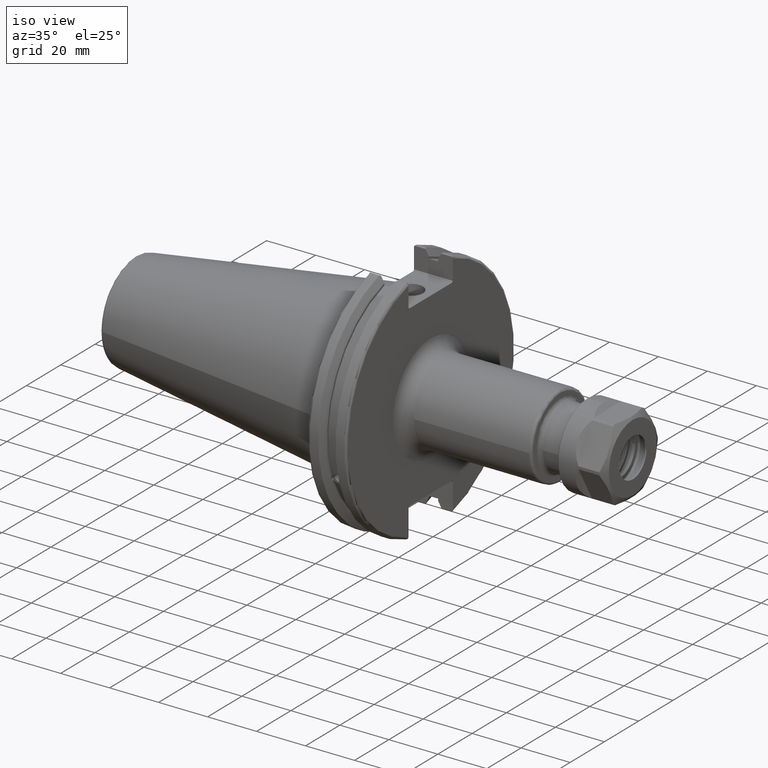
[diagram: clean part render]
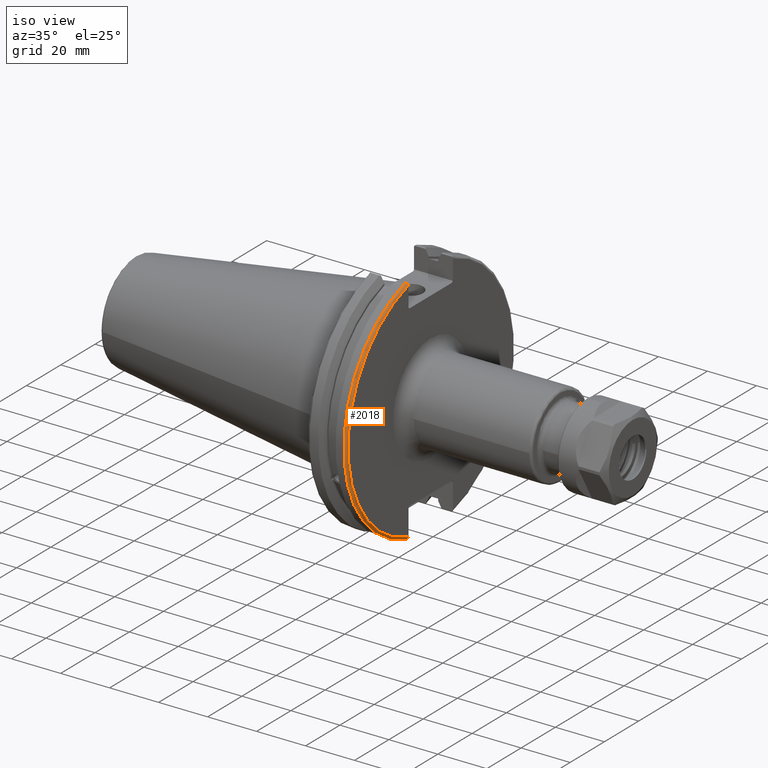
[diagram: same view with one face highlighted and labeled with its STEP entity id]
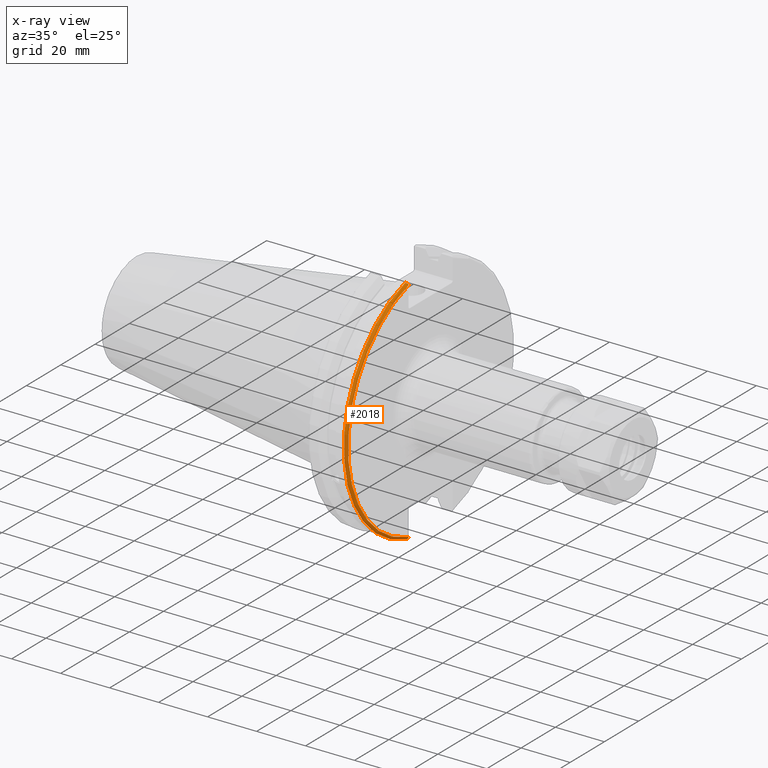
[diagram: x-ray of the same camera — body ghosted, the highlighted face saturated]
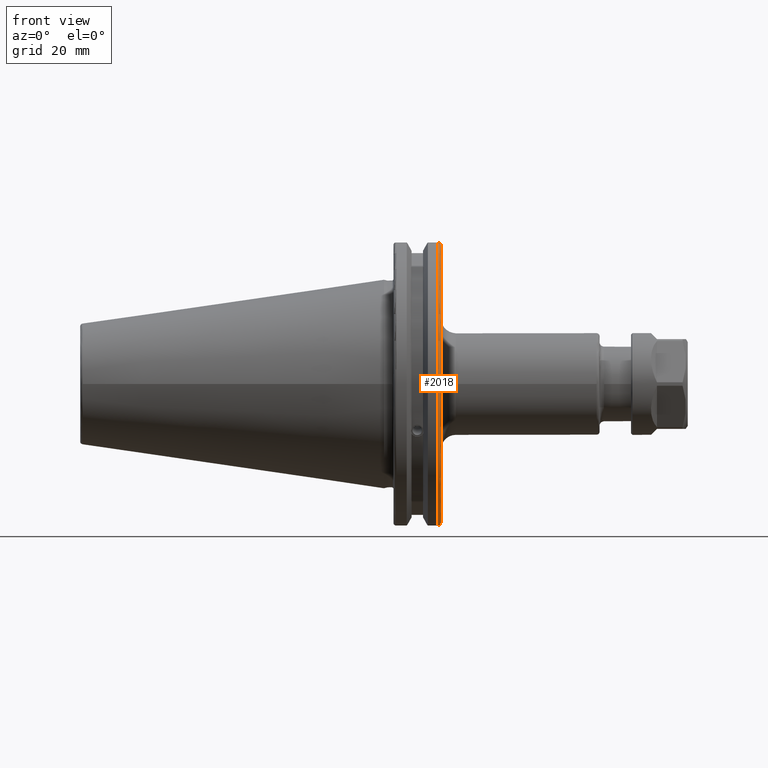
[diagram: same view with one face highlighted and labeled with its STEP entity id]
A machine part, iso view. The second image highlights one B-rep face of the part: STEP entity #2018.
The next image is the same camera in x-ray: the body ghosted, the highlighted face saturated — about 0% of this face is hidden behind the body in this view.
A second angle (front view) of the same face is appended — the face is thin or edge-on in the first view.
In plain terms, the highlighted toroidal blend (fillet) surface has major radius 48.2125 mm and minor (blend) radius 1 mm.
Its self-contained STEP definition (entity closure, byte-faithful):
#99=TOROIDAL_SURFACE('',#2271,48.2125,1.);
#131=B_SPLINE_CURVE_WITH_KNOTS('',3,(#3719,#3720,#3721,#3722,#3723,#3724),
 .UNSPECIFIED.,.F.,.F.,(4,2,4),(0.097707143645253,0.112358403262293,0.150882178076498),
 .UNSPECIFIED.);
#132=B_SPLINE_CURVE_WITH_KNOTS('',3,(#3726,#3727,#3728,#3729,#3730,#3731),
 .UNSPECIFIED.,.F.,.F.,(4,2,4),(0.452859694247731,0.491383469061936,0.506034728678978),
 .UNSPECIFIED.);
#133=B_SPLINE_CURVE_WITH_KNOTS('',3,(#3733,#3734,#3735,#3736,#3737,#3738,
#3739,#3740),.UNSPECIFIED.,.F.,.F.,(4,2,2,4),(-0.104075769062722,-0.0730268503455477,
-0.0343639873656263,0.),.UNSPECIFIED.);
#134=B_SPLINE_CURVE_WITH_KNOTS('',3,(#3743,#3744,#3745,#3746,#3747,#3748,
#3749,#3750),.UNSPECIFIED.,.F.,.F.,(4,2,2,4),(0.,0.0364336453281818,0.0778720357014993,
0.104197480645881),.UNSPECIFIED.);
#305=FACE_OUTER_BOUND('',#439,.T.);
#439=EDGE_LOOP('',(#1622,#1623,#1624,#1625,#1626,#1627));
#783=CIRCLE('',#2199,48.2125);
#818=CIRCLE('',#2272,49.2125);
#895=VERTEX_POINT('',#3143);
#896=VERTEX_POINT('',#3145);
#988=VERTEX_POINT('',#3718);
#989=VERTEX_POINT('',#3725);
#990=VERTEX_POINT('',#3732);
#991=VERTEX_POINT('',#3741);
#1103=EDGE_CURVE('',#896,#895,#783,.T.);
#1225=EDGE_CURVE('',#988,#896,#131,.T.);
#1226=EDGE_CURVE('',#895,#989,#132,.T.);
#1227=EDGE_CURVE('',#989,#990,#133,.T.);
#1228=EDGE_CURVE('',#990,#991,#818,.T.);
#1229=EDGE_CURVE('',#991,#988,#134,.T.);
#1622=ORIENTED_EDGE('',*,*,#1225,.T.);
#1623=ORIENTED_EDGE('',*,*,#1103,.T.);
#1624=ORIENTED_EDGE('',*,*,#1226,.T.);
#1625=ORIENTED_EDGE('',*,*,#1227,.T.);
#1626=ORIENTED_EDGE('',*,*,#1228,.T.);
#1627=ORIENTED_EDGE('',*,*,#1229,.T.);
#2018=ADVANCED_FACE('',(#305),#99,.T.);
#2199=AXIS2_PLACEMENT_3D('',#3146,#2485,#2486);
#2271=AXIS2_PLACEMENT_3D('',#3717,#2682,#2683);
#2272=AXIS2_PLACEMENT_3D('',#3742,#2684,#2685);
#2485=DIRECTION('center_axis',(-1.,0.,0.));
#2486=DIRECTION('ref_axis',(0.,-1.,1.60812264967664E-16));
#2682=DIRECTION('center_axis',(1.,0.,0.));
#2683=DIRECTION('ref_axis',(0.,0.,-1.));
#2684=DIRECTION('center_axis',(1.,0.,0.));
#2685=DIRECTION('ref_axis',(0.,-1.,1.60812264967664E-16));
#3143=CARTESIAN_POINT('',(19.05,-12.95,46.4407434937254));
#3145=CARTESIAN_POINT('',(19.05,-12.95,-46.4407434937254));
#3146=CARTESIAN_POINT('Origin',(19.05,0.,0.));
#3717=CARTESIAN_POINT('Origin',(18.05,0.,0.));
#3718=CARTESIAN_POINT('',(18.9055020570566,-12.95,-46.9780755322917));
#3719=CARTESIAN_POINT('Ctrl Pts',(18.9055020570566,-12.95,-46.9780755322917));
#3720=CARTESIAN_POINT('Ctrl Pts',(18.9322353702005,-12.95,-46.9322596399785));
#3721=CARTESIAN_POINT('Ctrl Pts',(18.9549831813775,-12.95,-46.8849952622217));
#3722=CARTESIAN_POINT('Ctrl Pts',(19.0209992543299,-12.95,-46.7204975987179));
#3723=CARTESIAN_POINT('Ctrl Pts',(19.05,-12.95,-46.5691560764394));
#3724=CARTESIAN_POINT('Ctrl Pts',(19.05,-12.95,-46.4407434937254));
#3725=CARTESIAN_POINT('',(18.9055020570566,-12.95,46.9780755322918));
#3726=CARTESIAN_POINT('Ctrl Pts',(19.05,-12.95,46.4407434937254));
#3727=CARTESIAN_POINT('Ctrl Pts',(19.05,-12.95,46.5691560764394));
#3728=CARTESIAN_POINT('Ctrl Pts',(19.0209992543299,-12.95,46.7204975987179));
#3729=CARTESIAN_POINT('Ctrl Pts',(18.9549831813775,-12.95,46.8849952622217));
#3730=CARTESIAN_POINT('Ctrl Pts',(18.9322353702005,-12.95,46.9322596399785));
#3731=CARTESIAN_POINT('Ctrl Pts',(18.9055020570566,-12.95,46.9780755322918));
#3732=CARTESIAN_POINT('',(18.05,-13.4317035994433,47.3440544806494));
#3733=CARTESIAN_POINT('Ctrl Pts',(18.9055020570566,-12.95,46.9780755322918));
#3734=CARTESIAN_POINT('Ctrl Pts',(18.8571496772125,-13.0300321736484,47.0388807469102));
#3735=CARTESIAN_POINT('Ctrl Pts',(18.792640282015,-13.1083611826073,47.0983919657547));
#3736=CARTESIAN_POINT('Ctrl Pts',(18.6399248789208,-13.2478194810695,47.2043467509586));
#3737=CARTESIAN_POINT('Ctrl Pts',(18.5186188350904,-13.3242014686233,47.2623787015413));
#3738=CARTESIAN_POINT('Ctrl Pts',(18.2983889675417,-13.4067722493645,47.3251126473446));
#3739=CARTESIAN_POINT('Ctrl Pts',(18.1645466245521,-13.4317035994433,47.3440544806494));
#3740=CARTESIAN_POINT('Ctrl Pts',(18.05,-13.4317035994433,47.3440544806494));
#3741=CARTESIAN_POINT('',(18.05,-13.4317035994433,-47.3440544806494));
#3742=CARTESIAN_POINT('Origin',(18.05,0.,0.));
#3743=CARTESIAN_POINT('Ctrl Pts',(18.05,-13.4317035994433,-47.3440544806494));
#3744=CARTESIAN_POINT('Ctrl Pts',(18.1714454844273,-13.4317035994433,-47.3440544806494));
#3745=CARTESIAN_POINT('Ctrl Pts',(18.3128758164404,-13.4037095171132,-47.3227857070233));
#3746=CARTESIAN_POINT('Ctrl Pts',(18.54495745946,-13.3111366376071,-47.2524525703658));
#3747=CARTESIAN_POINT('Ctrl Pts',(18.6710431007969,-13.2254637570201,-47.1873617743322));
#3748=CARTESIAN_POINT('Ctrl Pts',(18.811782280389,-13.0847856162862,-47.0804802022157));
#3749=CARTESIAN_POINT('Ctrl Pts',(18.8641312352177,-13.0184763978125,-47.0301011349397));
#3750=CARTESIAN_POINT('Ctrl Pts',(18.9055020570566,-12.95,-46.9780755322917));